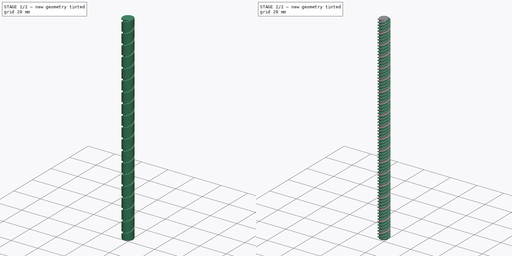
[diagram: build sequence overview — one tinted view per stage of 2, left to right]
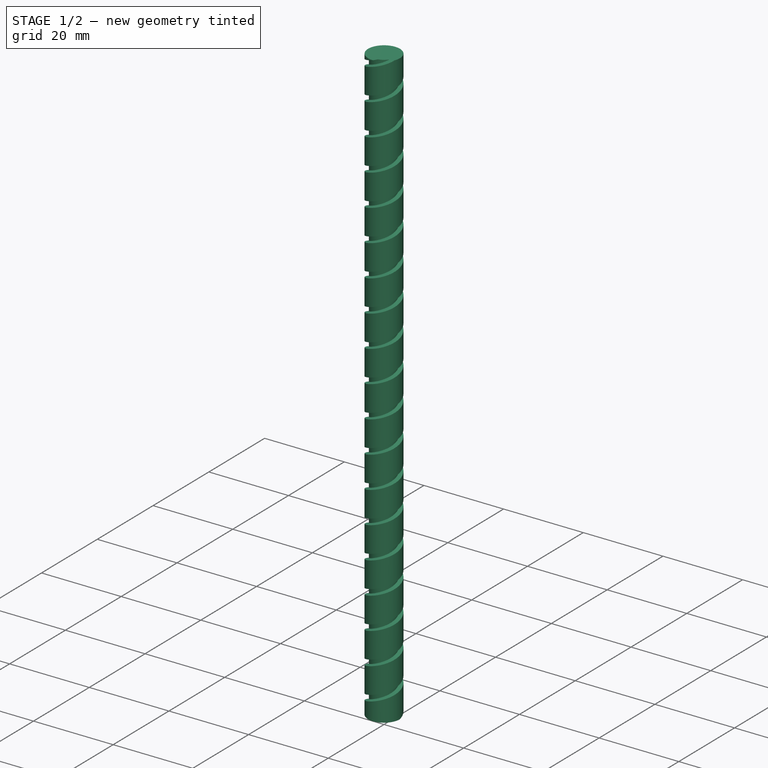
[diagram: stage 1 of 2 — iso view after this stage's code; geometry added in this stage tinted green]
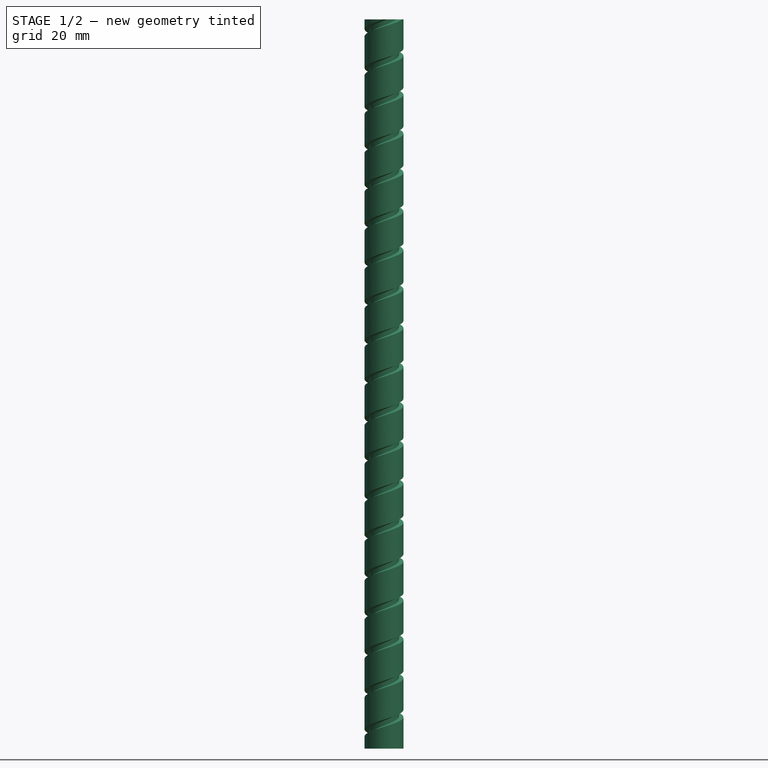
[diagram: stage 1 of 2 — front view after this stage's code; geometry added in this stage tinted green]
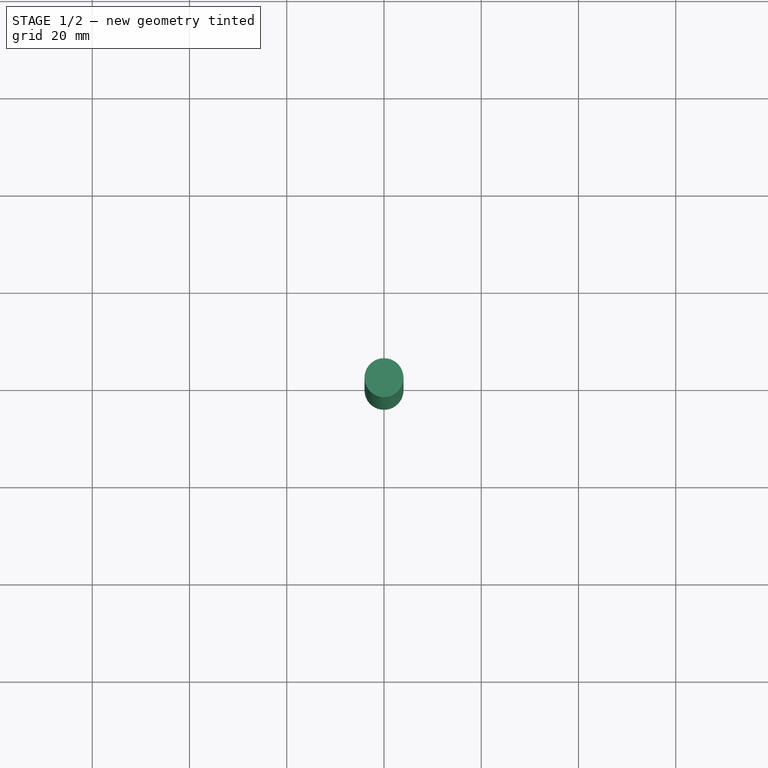
[diagram: stage 1 of 2 — top view after this stage's code; geometry added in this stage tinted green]
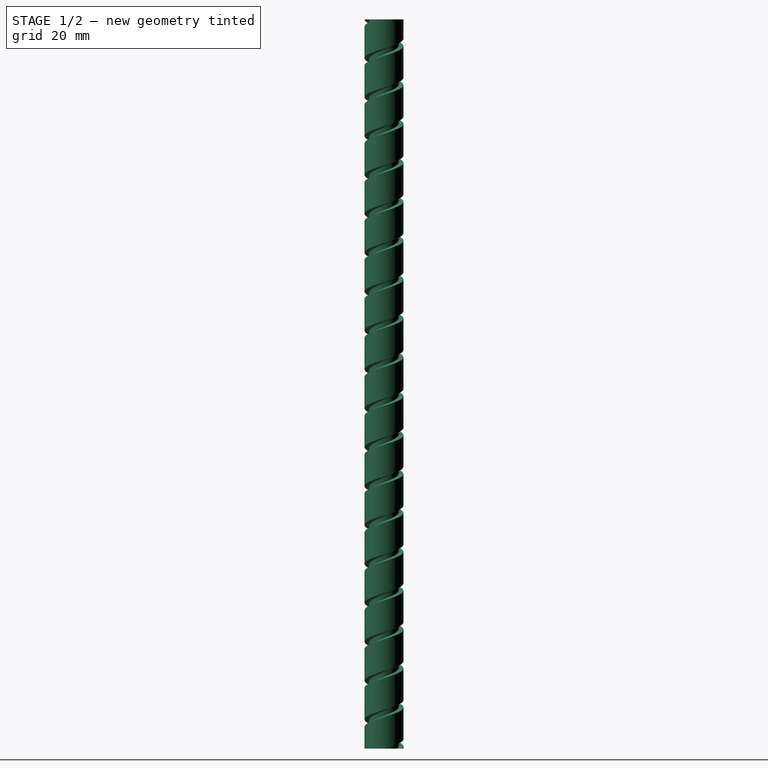
[diagram: stage 1 of 2 — right view after this stage's code; geometry added in this stage tinted green]
FCSTD DOCUMENT  (FreeCAD 2022.111R30764 (Git))
Label: T8_leadscrew_150mm
Comment: Thread created according to ISO 2904:2020\n\nhttps://cdn.standards.iteh.ai/samples/78729/7d158726108b478c889fa887d460ba78/ISO-2904-2020.pdf
License: Creative Commons Attribution
LicenseURL: http://creativecommons.org/licenses/by/4.0/
objects: Sketcher::SketchObject×3, PartDesign::Pad×1, PartDesign::SubtractiveHelix×1, PartDesign::PolarPattern×1, Spreadsheet::Sheet×1, PartDesign::Groove×1, PartDesign::Body×1, App::Part×1
note: 16 computed .brp shape members not serialized (recipe doc carries the construction recipe); baked Part::Feature solids carry a one-line shape summary decoded from their .brp

FEATURE [Sketcher::SketchObject] Sketch  label="Circle"
  FullyConstrained = true
  MapMode = 5
  Support = -> [XY_Plane]
  TreeRank = 13
  expr: Constraints[1] = <<SS>>.d
  sketch-geometry (1):
    g0: Circle CenterX=0 CenterY=0 CenterZ=0 NormalX=0 NormalY=0 NormalZ=1 AngleXU=0 Radius=4
  constraints (2):
    c: Coincident(g0,g-1)
    c: Diameter(g0) = 8
FEATURE [PartDesign::Pad] Pad
  AddSubType = 0
  AlongSketchNormal = false
  CheckUpToFaceLimits = true
  ClaimChildren = false
  Direction = (0,0,1)
  Fit = 0
  FitJoin = 0
  InnerFit = 0
  InnerFitJoin = 0
  InnerTaperAngle = 0
  InnerTaperAngleRev = 0
  Length = 150
  Length2 = 100
  Linearize = true
  NewSolid = false
  Profile = -> Sketch
  Suppress = false
  TreeRank = 14
  Type = 0
  _ProfileBasedVersion = 1
FEATURE [Sketcher::SketchObject] Sketch001  label="ISO 2904:2020"
  ExternalGeometry = -> [Pad]
  FullyConstrained = true
  MapMode = 5
  Placement = pos=(0,0,0) rot=(1,0,0;1.5708rad)
  Support = -> [XZ_Plane]
  TreeRank = 20
  sketch-geometry (8):
    g0: LineSegment [constr] StartX=4 StartY=0 StartZ=0 EndX=1.20096 EndY=-0.75 EndZ=0
    g1: LineSegment [constr] StartX=1.20096 StartY=-0.75 StartZ=0 EndX=4 EndY=-1.5 EndZ=0
    g2: LineSegment [constr] StartX=4 StartY=-1.5 StartZ=0 EndX=1.20096 EndY=-2.25 EndZ=0
    g3: LineSegment [constr] StartX=1.20096 StartY=-2.25 StartZ=0 EndX=4 EndY=-3 EndZ=0
    g4: LineSegment StartX=3.1 StartY=-0.241154 StartZ=0 EndX=3.1 EndY=-1.25885 EndZ=0
    g5: LineSegment StartX=3.1 StartY=-1.25885 StartZ=0 EndX=4.1 EndY=-1.52679 EndZ=0
    g6: LineSegment StartX=4.1 StartY=-1.52679 StartZ=0 EndX=4.1 EndY=0.0267949 EndZ=0
    g7: LineSegment StartX=4.1 StartY=0.0267949 StartZ=0 EndX=3.1 EndY=-0.241154 EndZ=0
  constraints (24):
    c: Coincident(g0,g1)
    c: Coincident(g2,g3)
    c: Vertical(g0,g2)
    c: Vertical(g0,g3)
    c: Vertical(g3,g1)
    c: Parallel(g0,g2)
    c: Parallel(g1,g3)
    c: Angle(g1,g2) = 0.523599
    c: Coincident(g0,g-3)
    c: Angle(g-3,g0) = 0.261799
    c: Coincident(g1,g2)
    c: DistanceY(g3,g1) = 1.5
    c: PointOnObject(g4,g0)
    c: PointOnObject(g4,g1)
    c: Vertical(g4)
    c: Coincident(g4,g5)
    c: PointOnObject(g5,g1)
    c: Coincident(g5,g6)
    c: PointOnObject(g6,g0)
    c: Coincident(g6,g7)
    c: Coincident(g7,g4)
    c: Vertical(g6)
    c: DistanceX(g-3,g6) = 0.1
    c: DistanceX(g4) = 3.1
FEATURE [PartDesign::SubtractiveHelix] Helix
  AddSubType = 1
  Angle = 0
  Axis = (0,-2e-16,1)
  Base = (0,0,0)
  BaseFeature = -> Pad
  ClaimChildren = false
  Fit = 0
  FitJoin = 0
  Growth = 0
  HasBeenEdited = true
  Height = 158
  InnerFit = 0
  InnerFitJoin = 0
  LeftHanded = false
  Linearize = true
  Mode = 0
  NewSolid = false
  Outside = false
  Pitch = 8
  Profile = -> Sketch001
  ReferenceAxis = -> Sketch001 [V_Axis]
  Suppress = false
  TreeRank = 21
  Turns = 19.75
  _ProfileBasedVersion = 1
  expr: Height = <<SS>>.l + <<SS>>.d
  expr: Pitch = <<SS>>.trans
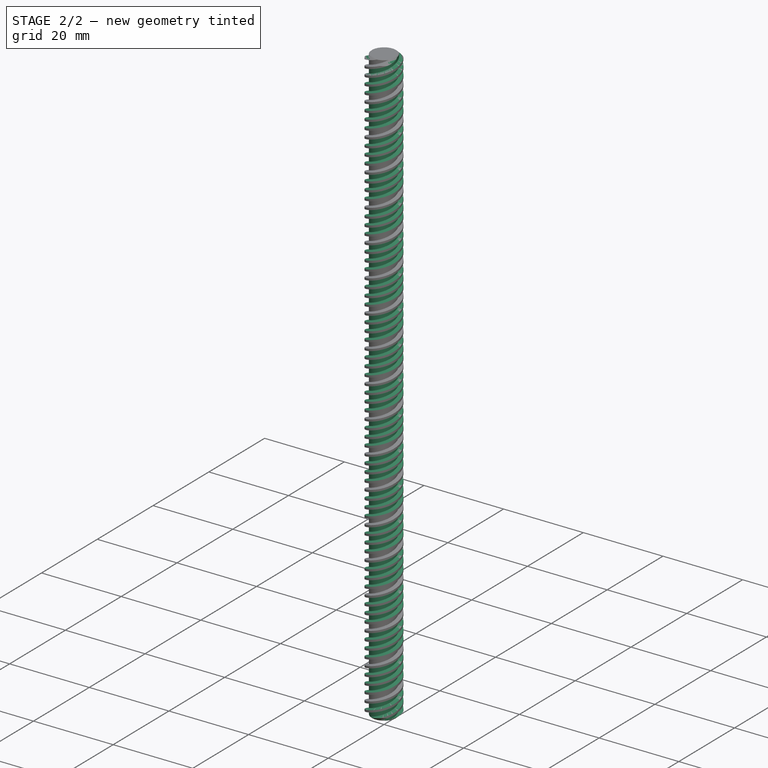
[diagram: stage 2 of 2 — iso view after this stage's code; geometry added in this stage tinted green]
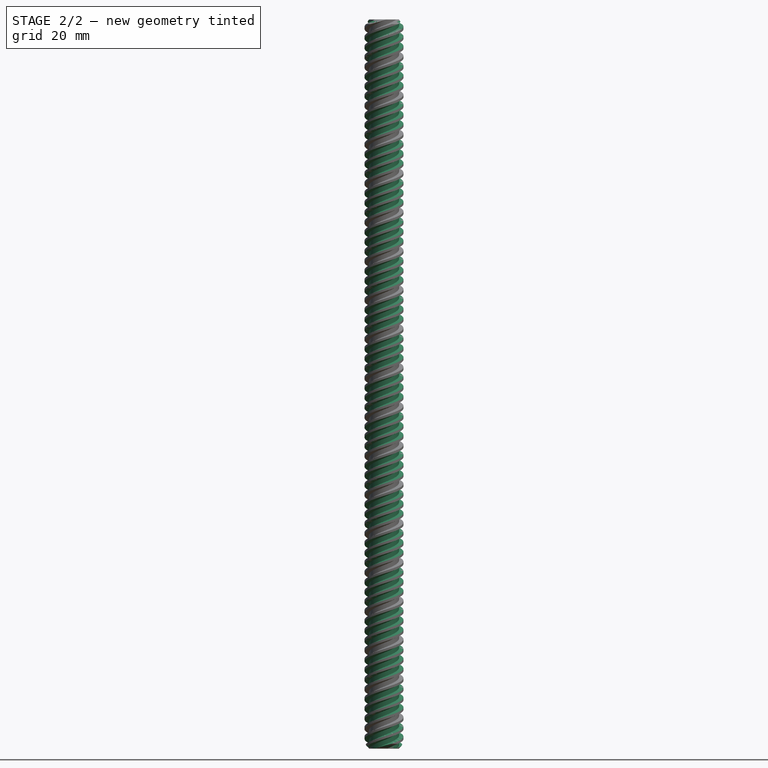
[diagram: stage 2 of 2 — front view after this stage's code; geometry added in this stage tinted green]
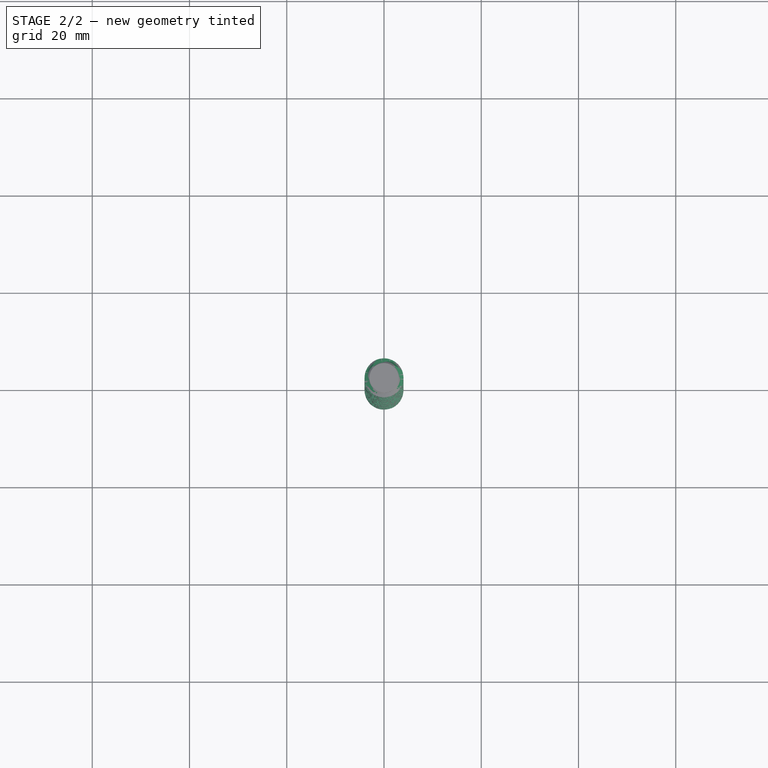
[diagram: stage 2 of 2 — top view after this stage's code; geometry added in this stage tinted green]
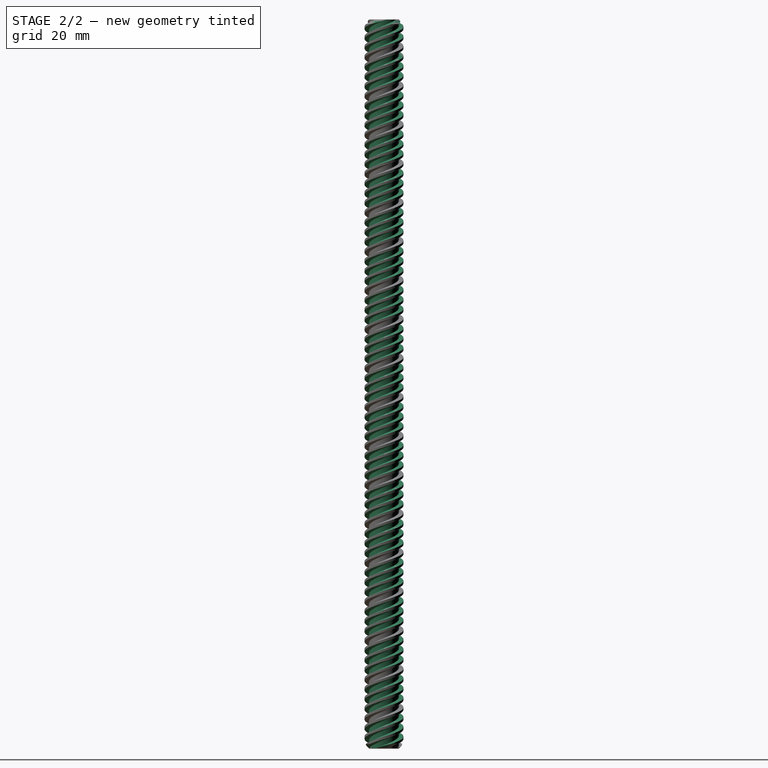
[diagram: stage 2 of 2 — right view after this stage's code; geometry added in this stage tinted green]
FEATURE [PartDesign::PolarPattern] PolarPattern
  AddSubType = 0
  Angle = 360
  Axis = -> Sketch001 [V_Axis]
  BaseFeature = -> Helix
  CopyShape = false
  NewSolid = false
  Occurrences = 4
  OriginalSubs = -> [Helix]
  Originals = -> [Helix]
  ParallelTransform = true
  SubTransform = true
  Suppress = false
  TreeRank = 22
  _Version = 3
  expr: Occurrences = <<SS>>.st
FEATURE [Spreadsheet::Sheet] Spreadsheet  label="SS"
  PythonMode = false
  ShowCells = 0
  TreeRank = 23
  cells = A1=Important dimensions for the model; A3=Diameter; B3(d)=8; A4=Length; B4(l)=150; A5=Translation for every single revolution; B5(trans)=8; A6=Starts; B6(st)=4
FEATURE [Sketcher::SketchObject] Sketch002  label="Chamfer"
  FullyConstrained = true
  MapMode = 5
  Placement = pos=(0,0,0) rot=(1,0,0;1.5708rad)
  Support = -> [XZ_Plane]
  TreeRank = 24
  expr: Constraints[16] = <<SS>>.l
  sketch-geometry (6):
    g0: LineSegment StartX=3 StartY=0 StartZ=0 EndX=4 EndY=0 EndZ=0
    g1: LineSegment StartX=4 StartY=0 StartZ=0 EndX=4 EndY=1 EndZ=0
    g2: LineSegment StartX=4 StartY=1 StartZ=0 EndX=3 EndY=0 EndZ=0
    g3: LineSegment StartX=4 StartY=149 StartZ=0 EndX=4 EndY=150 EndZ=0
    g4: LineSegment StartX=4 StartY=150 StartZ=0 EndX=3 EndY=150 EndZ=0
    g5: LineSegment StartX=3 StartY=150 StartZ=0 EndX=4 EndY=149 EndZ=0
  constraints (18):
    c: PointOnObject(g0,g-1)
    c: PointOnObject(g0,g-1)
    c: Coincident(g0,g1)
    c: Coincident(g1,g2)
    c: Coincident(g2,g0)
    c: Vertical(g1)
    c: Vertical(g3)
    c: Coincident(g3,g4)
    c: Horizontal(g4)
    c: Coincident(g4,g5)
    c: Coincident(g5,g3)
    c: Equal(g1,g3)
    c: Vertical(g3,g1)
    c: Equal(g4,g0)
    c: DistanceX(g0) = 3
    c: DistanceX(g0,g0) = 1
    c: DistanceY(g0,g3) = 150
    c: Equal(g0,g1)
FEATURE [PartDesign::Groove] Groove
  AddSubType = 1
  Angle = 360
  Axis = (0,-2e-16,1)
  Base = (0,0,0)
  BaseFeature = -> PolarPattern
  ClaimChildren = false
  Fit = 0
  FitJoin = 0
  InnerFit = 0
  InnerFitJoin = 0
  Linearize = true
  NewSolid = false
  Profile = -> Sketch002
  ReferenceAxis = -> Sketch002 [V_Axis]
  Suppress = false
  TreeRank = 25
  _ProfileBasedVersion = 1
FEATURE [PartDesign::Body] Body
  AutoGroupSolids = false
  ExportMode = 0
  Group = -> [Sketch,Pad,Sketch001,Helix,PolarPattern,Sketch002,Groove]
  Origin = -> Origin
  Tip = -> Groove
  TreeRank = 12
  _ExportChildren = -> [Pad,Helix,PolarPattern,Groove]
  _GroupVersion = 1
FEATURE [App::Part] Part  label="T8 Leadscrew"
  ExportMode = 1
  Group = -> [Body]
  Origin = -> Origin001
  TreeRank = 19
  _ExportChildren = -> [Body]
  _GroupVersion = 1
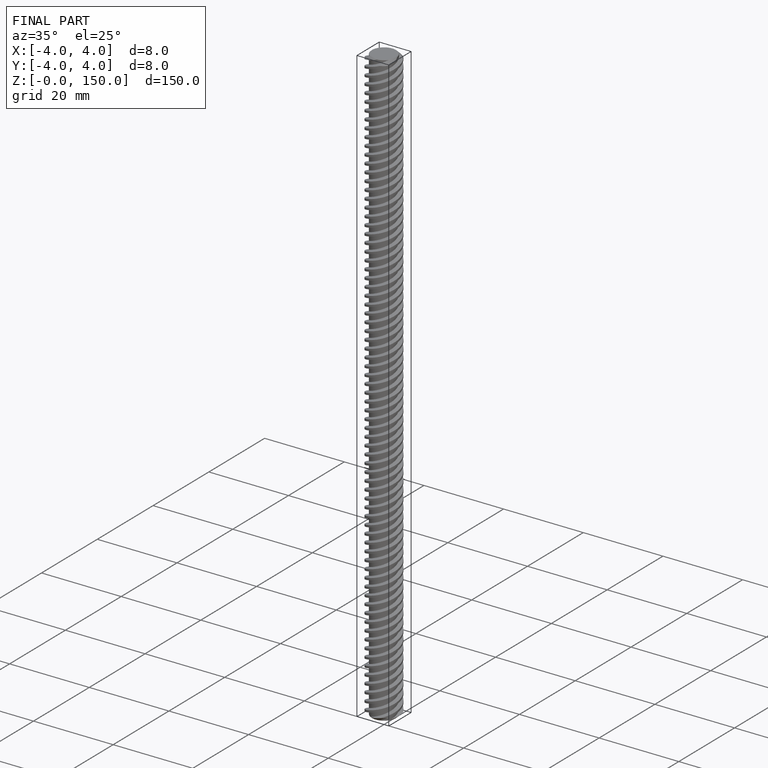
[diagram: finished part — iso view with bounding-box wireframe]
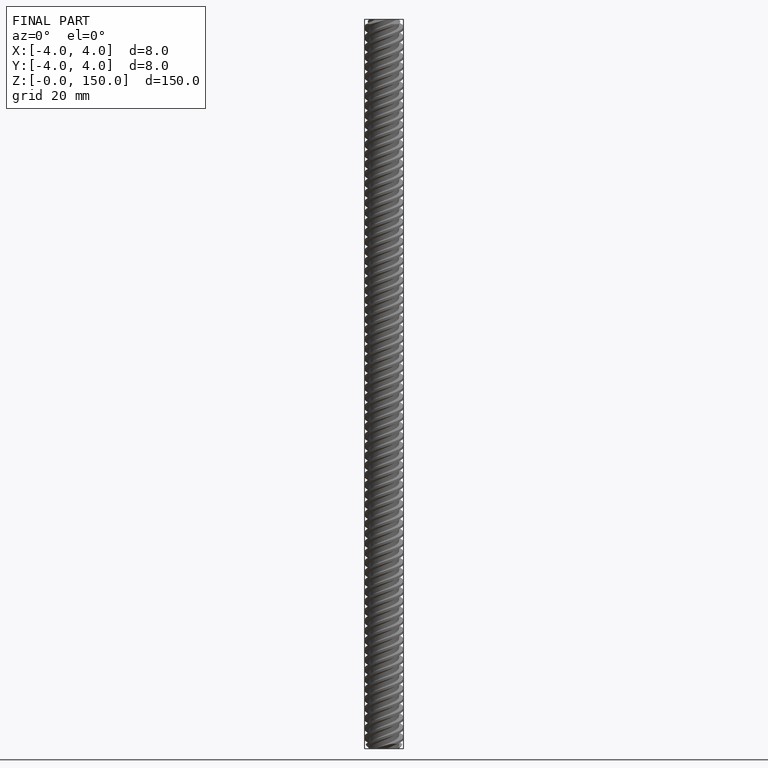
[diagram: finished part — front view with bounding-box wireframe]
